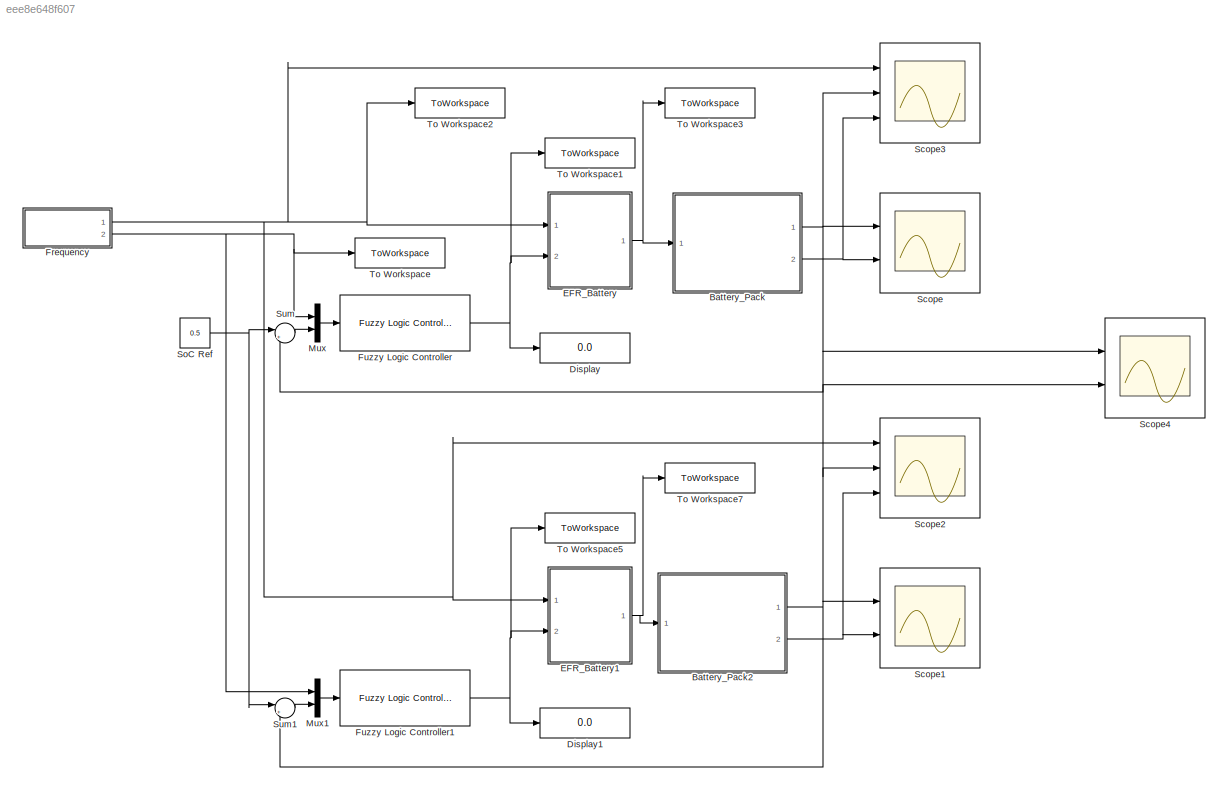
MODEL slx_eee8e648f607
KIND model
CONFIG AbsTol = auto
CONFIG EnableMultiTasking = off
CONFIG FixedStep = auto
CONFIG MaxStep = auto
CONFIG MinStep = auto
CONFIG RelTol = 1e-3
CONFIG SampleTimeConstraint = Unconstrained
CONFIG SolverName = ode23
CONFIG StartTime = 0.0
CONFIG StopTime = 3600*24
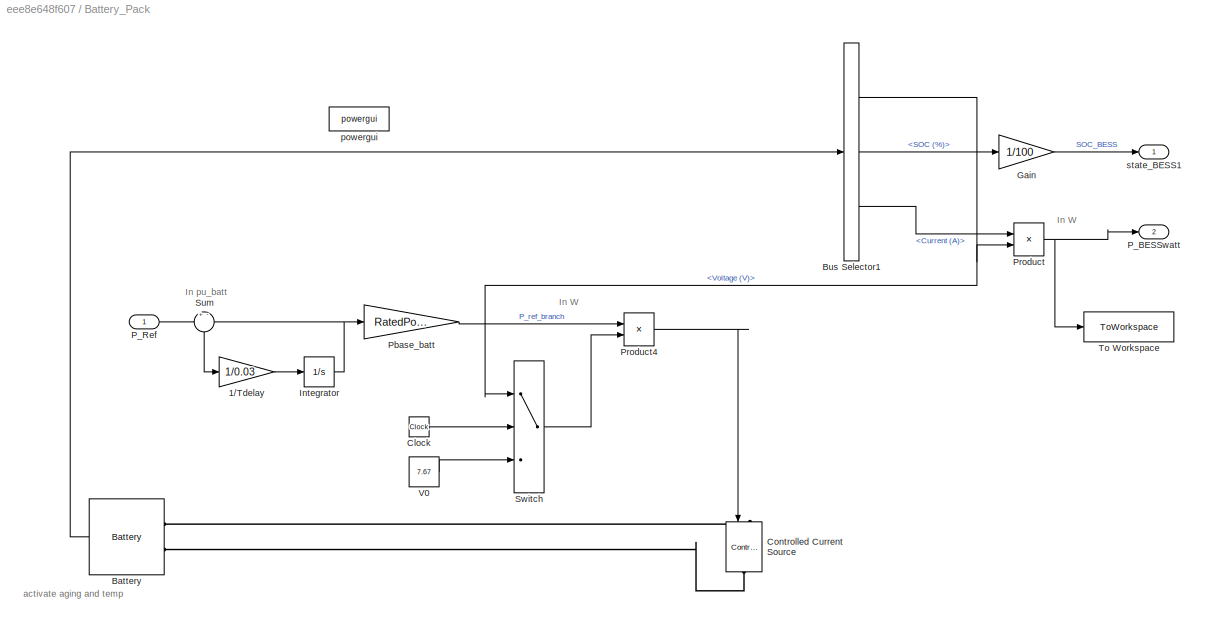
BLOCK [SubSystem] Battery_Pack
  Ports = [1, 2]
  RequestExecContextInheritance = off
BLOCK [Gain] Battery_Pack/1//Tdelay
  Gain = 1/0.03
BLOCK [Reference] Battery_Pack/Battery  REF=spsBatteryLib/Battery
  Ports = [0, 1, 0, 0, 0, 2]
  SourceBlock = spsBatteryLib/Battery
  SourceProductBaseCode = PS
  SourceType = Battery
BLOCK [BusSelector] Battery_Pack/Bus Selector1
  OutputSignals = Voltage (V),SOC (%),Current (A)
  Ports = [1, 3]
BLOCK [Clock] Battery_Pack/Clock
BLOCK [Reference] Battery_Pack/Controlled Current Source  REF=spsControlledCurrentSourceLib/Controlled Current Source
  NameLocation = left
  Ports = [1, 0, 0, 0, 0, 1, 1]
  SourceBlock = spsControlledCurrentSourceLib/Controlled Current Source
  SourceProductBaseCode = PS
  SourceType = Controlled Current Source
BLOCK [Gain] Battery_Pack/Gain
  Gain = 1/100
BLOCK [Integrator] Battery_Pack/Integrator
  Ports = [1, 1]
BLOCK [Outport] Battery_Pack/P_BESSwatt
  Port = 2
  VectorParamsAs1DForOutWhenUnconnected = off
BLOCK [Inport] Battery_Pack/P_Ref
BLOCK [Gain] Battery_Pack/Pbase_batt
  Gain = RatedPower
BLOCK [Product] Battery_Pack/Product
  Ports = [2, 1]
BLOCK [Product] Battery_Pack/Product4
  Inputs = */
  Ports = [2, 1]
BLOCK [Sum] Battery_Pack/Sum
  Inputs = +-
  NameLocation = left
  Ports = [2, 1]
BLOCK [Switch] Battery_Pack/Switch
  Criteria = u2 > Threshold
  InputSameDT = off
  SaturateOnIntegerOverflow = off
BLOCK [ToWorkspace] Battery_Pack/To Workspace
  FixptAsFi = on
  MaxDataPoints = inf
  Ports = [1]
  SampleTime = 1
  VariableName = PBESS1
BLOCK [Constant] Battery_Pack/V0
  Value = 7.67
BLOCK [Reference] Battery_Pack/powergui  REF=spspowerguiLib/powergui
  Ports = []
  SourceBlock = spspowerguiLib/powergui
  SourceProductBaseCode = PS
  SourceType = PSB option menu block
BLOCK [Outport] Battery_Pack/state_BESS1
  VectorParamsAs1DForOutWhenUnconnected = off
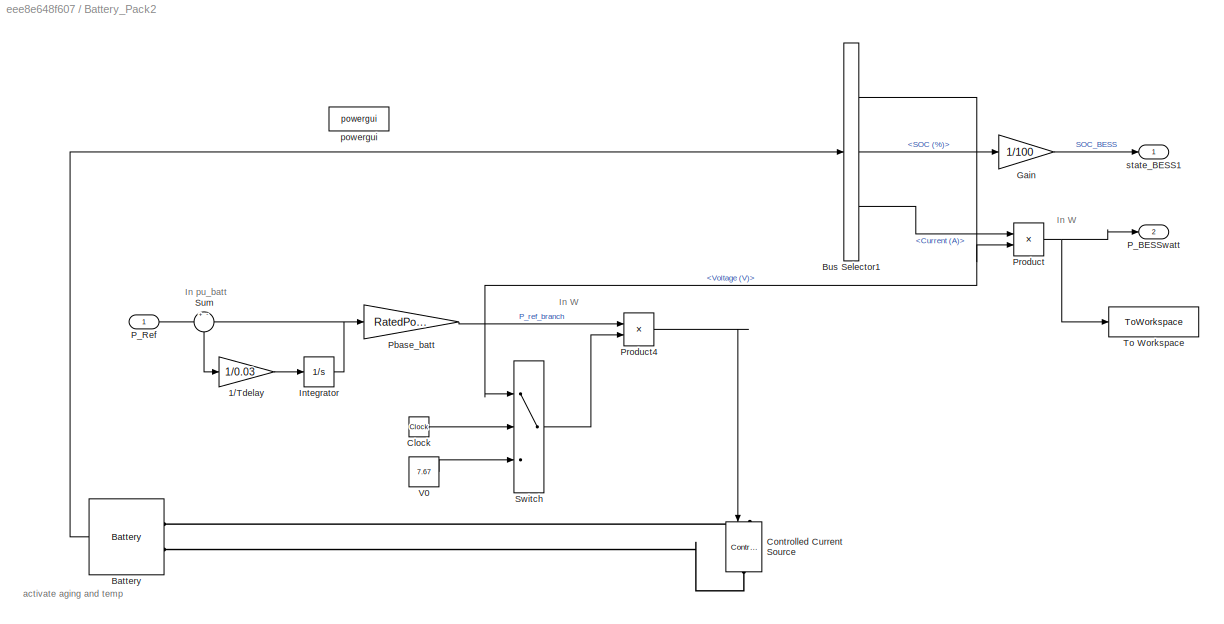
BLOCK [SubSystem] Battery_Pack2
  Ports = [1, 2]
  RequestExecContextInheritance = off
BLOCK [Gain] Battery_Pack2/1//Tdelay
  Gain = 1/0.03
BLOCK [Reference] Battery_Pack2/Battery  REF=spsBatteryLib/Battery
  Ports = [0, 1, 0, 0, 0, 2]
  SourceBlock = spsBatteryLib/Battery
  SourceProductBaseCode = PS
  SourceType = Battery
BLOCK [BusSelector] Battery_Pack2/Bus Selector1
  OutputSignals = Voltage (V),SOC (%),Current (A)
  Ports = [1, 3]
BLOCK [Clock] Battery_Pack2/Clock
BLOCK [Reference] Battery_Pack2/Controlled Current Source  REF=spsControlledCurrentSourceLib/Controlled Current Source
  NameLocation = left
  Ports = [1, 0, 0, 0, 0, 1, 1]
  SourceBlock = spsControlledCurrentSourceLib/Controlled Current Source
  SourceProductBaseCode = PS
  SourceType = Controlled Current Source
BLOCK [Gain] Battery_Pack2/Gain
  Gain = 1/100
BLOCK [Integrator] Battery_Pack2/Integrator
  Ports = [1, 1]
BLOCK [Outport] Battery_Pack2/P_BESSwatt
  Port = 2
  VectorParamsAs1DForOutWhenUnconnected = off
BLOCK [Inport] Battery_Pack2/P_Ref
BLOCK [Gain] Battery_Pack2/Pbase_batt
  Gain = RatedPower
BLOCK [Product] Battery_Pack2/Product
  Ports = [2, 1]
BLOCK [Product] Battery_Pack2/Product4
  Inputs = */
  Ports = [2, 1]
BLOCK [Sum] Battery_Pack2/Sum
  Inputs = +-
  NameLocation = left
  Ports = [2, 1]
BLOCK [Switch] Battery_Pack2/Switch
  Criteria = u2 > Threshold
  InputSameDT = off
  SaturateOnIntegerOverflow = off
BLOCK [ToWorkspace] Battery_Pack2/To Workspace
  FixptAsFi = on
  MaxDataPoints = inf
  Ports = [1]
  SampleTime = 1
  VariableName = PBESS2
BLOCK [Constant] Battery_Pack2/V0
  Value = 7.67
BLOCK [Reference] Battery_Pack2/powergui  REF=spspowerguiLib/powergui
  Ports = []
  SourceBlock = spspowerguiLib/powergui
  SourceProductBaseCode = PS
  SourceType = PSB option menu block
BLOCK [Outport] Battery_Pack2/state_BESS1
  VectorParamsAs1DForOutWhenUnconnected = off
BLOCK [Display] Display
  Decimation = 1
  Ports = [1]
BLOCK [Display] Display1
  Decimation = 1
  Ports = [1]
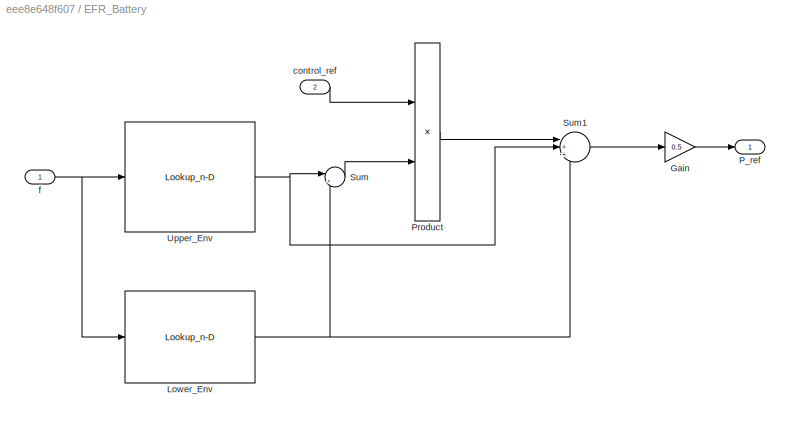
BLOCK [SubSystem] EFR_Battery
  Ports = [2, 1]
  RequestExecContextInheritance = off
BLOCK [Gain] EFR_Battery/Gain
  Gain = 0.5
BLOCK [Lookup_n-D] EFR_Battery/Lower_Env
  BreakpointsForDimension1 = f_serv_low
  ExtrapMethod = Clip
  InputPortMap = u0
  InternalRulePriority = Speed
  NumberOfTableDimensions = 1
  Ports = [1, 1]
  RndMeth = Simplest
  Table = P_serv_low
  UseLastTableValue = on
BLOCK [Outport] EFR_Battery/P_ref
  VectorParamsAs1DForOutWhenUnconnected = off
BLOCK [Product] EFR_Battery/Product
  Ports = [2, 1]
BLOCK [Sum] EFR_Battery/Sum
  Inputs = |+-
  Ports = [2, 1]
BLOCK [Sum] EFR_Battery/Sum1
  Inputs = |+++
  Ports = [3, 1]
BLOCK [Lookup_n-D] EFR_Battery/Upper_Env
  BreakpointsForDimension1 = f_serv_upp
  ExtrapMethod = Clip
  InputPortMap = u0
  InternalRulePriority = Speed
  NumberOfTableDimensions = 1
  Ports = [1, 1]
  RndMeth = Simplest
  Table = P_serv_upp
  UseLastTableValue = on
BLOCK [Inport] EFR_Battery/control_ref
  NameLocation = top
  Port = 2
  SampleTime = 10
BLOCK [Inport] EFR_Battery/f
  NameLocation = top
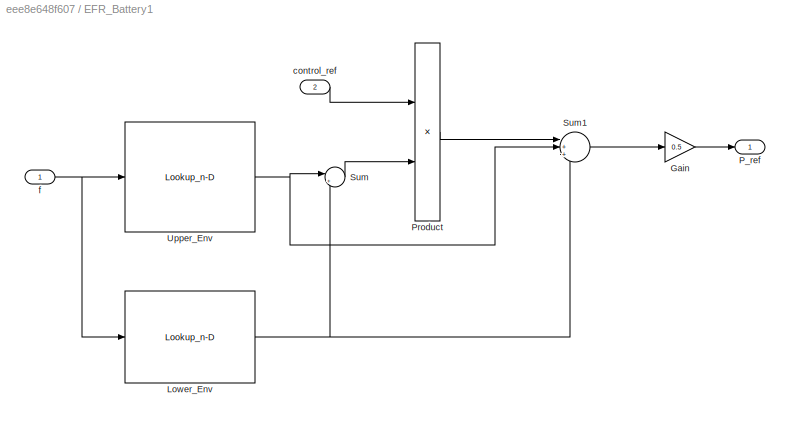
BLOCK [SubSystem] EFR_Battery1
  Ports = [2, 1]
  RequestExecContextInheritance = off
BLOCK [Gain] EFR_Battery1/Gain
  Gain = 0.5
BLOCK [Lookup_n-D] EFR_Battery1/Lower_Env
  BreakpointsForDimension1 = f_serv_low
  ExtrapMethod = Clip
  InputPortMap = u0
  InternalRulePriority = Speed
  NumberOfTableDimensions = 1
  Ports = [1, 1]
  RndMeth = Simplest
  Table = P_serv_low
  UseLastTableValue = on
BLOCK [Outport] EFR_Battery1/P_ref
  VectorParamsAs1DForOutWhenUnconnected = off
BLOCK [Product] EFR_Battery1/Product
  Ports = [2, 1]
BLOCK [Sum] EFR_Battery1/Sum
  Inputs = |+-
  Ports = [2, 1]
BLOCK [Sum] EFR_Battery1/Sum1
  Inputs = |+++
  Ports = [3, 1]
BLOCK [Lookup_n-D] EFR_Battery1/Upper_Env
  BreakpointsForDimension1 = f_serv_upp
  ExtrapMethod = Clip
  InputPortMap = u0
  InternalRulePriority = Speed
  NumberOfTableDimensions = 1
  Ports = [1, 1]
  RndMeth = Simplest
  Table = P_serv_upp
  UseLastTableValue = on
BLOCK [Inport] EFR_Battery1/control_ref
  NameLocation = top
  Port = 2
  SampleTime = 10
BLOCK [Inport] EFR_Battery1/f
  NameLocation = top
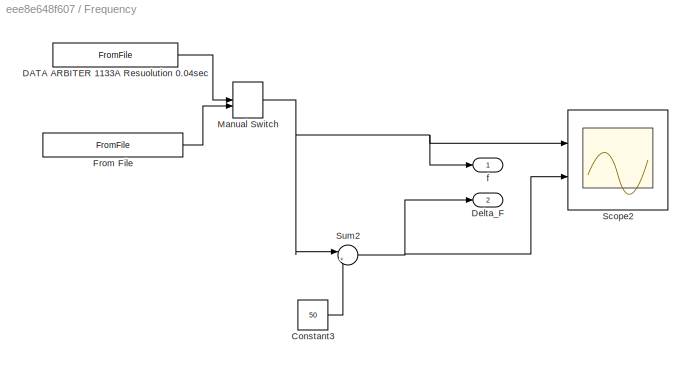
BLOCK [SubSystem] Frequency
  Ports = [0, 2]
  RequestExecContextInheritance = off
BLOCK [Constant] Frequency/Constant3
  Value = 50
BLOCK [FromFile] Frequency/DATA ARBITER 1133A Resuolution 0.04sec 
  FileName = f_DATA_1133Axxx.mat
BLOCK [Outport] Frequency/Delta_F
  Port = 2
BLOCK [FromFile] Frequency/From File
  ExtrapolationBeforeFirstDataPoint = Ground value
  FileName = f_data_2021_12v.mat
BLOCK [ManualSwitch] Frequency/Manual Switch
  CurrentSetting = 0
BLOCK [Scope] Frequency/Scope2
  Floating = off
  NumInputPorts = 2
  Ports = [2]
  ScopeSpecificationString = Simulink.scopes.TimeScopeBlockCfg('CurrentConfiguration', extmgr.ConfigurationSet(extmgr.Configuration('Core','General UI',true),extmgr.Configuration('Core','Source UI',true),extmgr.Configuration('Sources','WiredSimulink',true,'DataLoggingVariableName','ScopeData2'),extmgr.Configuration('Visuals','Time Domain',true,'SerializedDisplays',{struct('MinYLimReal','49.8701','MaxYLimReal','50.04082','YLab...<+2027ch>
BLOCK [Sum] Frequency/Sum2
  Inputs = |+-
  Ports = [2, 1]
BLOCK [Outport] Frequency/f
BLOCK [Reference] Fuzzy Logic Controller  REF=fuzblock/Fuzzy Logic   (lib defined in mdl_858b3b3e7478)
Controller
  Ports = [1, 1]
  SourceBlock = fuzblock/Fuzzy Logic \nController
  SourceProductBaseCode = FL
  SourceType = Fuzzy Inference System
BLOCK [Reference] Fuzzy Logic Controller1  REF=fuzblock/Fuzzy Logic   (lib defined in mdl_858b3b3e7478)
Controller
  Ports = [1, 1]
  SourceBlock = fuzblock/Fuzzy Logic \nController
  SourceProductBaseCode = FL
  SourceType = Fuzzy Inference System
BLOCK [Mux] Mux
  DisplayOption = bar
  Inputs = 2
  Ports = [2, 1]
BLOCK [Mux] Mux1
  DisplayOption = bar
  Inputs = 2
  Ports = [2, 1]
BLOCK [Scope] Scope
  Floating = off
  NumInputPorts = 2
  Ports = [2]
  ScopeSpecificationString = Simulink.scopes.TimeScopeBlockCfg('CurrentConfiguration', extmgr.ConfigurationSet(extmgr.Configuration('Core','General UI',true),extmgr.Configuration('Core','Source UI',true),extmgr.Configuration('Sources','WiredSimulink',true,'DataLoggingVariableName','ScopeData1'),extmgr.Configuration('Visuals','Time Domain',true,'SerializedDisplays',{struct('MinYLimReal','0.45755','MaxYLimReal','0.50472','YLabe...<+2140ch>
BLOCK [Scope] Scope1
  Floating = off
  NumInputPorts = 2
  Ports = [2]
  ScopeSpecificationString = Simulink.scopes.TimeScopeBlockCfg('CurrentConfiguration', extmgr.ConfigurationSet(extmgr.Configuration('Core','General UI',true),extmgr.Configuration('Core','Source UI',true),extmgr.Configuration('Sources','WiredSimulink',true,'DataLoggingVariableName','ScopeData1'),extmgr.Configuration('Visuals','Time Domain',true,'SerializedDisplays',{struct('MinYLimReal','0.44332','MaxYLimReal','0.5438','YLabel...<+2140ch>
BLOCK [Scope] Scope2
  Floating = off
  NumInputPorts = 3
  Ports = [3]
  ScopeSpecificationString = Simulink.scopes.TimeScopeBlockCfg('CurrentConfiguration', extmgr.ConfigurationSet(extmgr.Configuration('Core','General UI',true,'FigureColor',[1 1 1]),extmgr.Configuration('Core','Source UI',true),extmgr.Configuration('Sources','WiredSimulink',true,'DataLoggingVariableName','ScopeData2'),extmgr.Configuration('Visuals','Time Domain',true,'SerializedDisplays',{struct('MinYLimReal','49.69225','MaxYLi...<+3238ch>
BLOCK [Scope] Scope3
  Floating = off
  NumInputPorts = 3
  Ports = [3]
  ScopeSpecificationString = Simulink.scopes.TimeScopeBlockCfg('CurrentConfiguration', extmgr.ConfigurationSet(extmgr.Configuration('Core','General UI',true,'FigureColor',[1 1 1]),extmgr.Configuration('Core','Source UI',true),extmgr.Configuration('Sources','WiredSimulink',true,'DataLoggingVariableName','ScopeData2'),extmgr.Configuration('Visuals','Time Domain',true,'SerializedDisplays',{struct('MinYLimReal','49.85325','MaxYLi...<+3239ch>
BLOCK [Scope] Scope4
  Floating = off
  NumInputPorts = 2
  Ports = [2]
  ScopeSpecificationString = Simulink.scopes.TimeScopeBlockCfg('CurrentConfiguration', extmgr.ConfigurationSet(extmgr.Configuration('Core','General UI',true,'FigureColor',[1 1 1]),extmgr.Configuration('Core','Source UI',true),extmgr.Configuration('Sources','WiredSimulink',true,'DataLoggingVariableName','ScopeData3'),extmgr.Configuration('Visuals','Time Domain',true,'SerializedDisplays',{struct('MinYLimReal','0.45321','MaxYLim...<+2305ch>
BLOCK [Constant] SoC Ref
  Value = 0.5
BLOCK [Sum] Sum
  Inputs = |+-
  Ports = [2, 1]
BLOCK [Sum] Sum1
  Inputs = |+-
  Ports = [2, 1]
BLOCK [ToWorkspace] To Workspace
  FixptAsFi = on
  MaxDataPoints = inf
  Ports = [1]
  SampleTime = -1
  VariableName = deltaFreq
BLOCK [ToWorkspace] To Workspace1
  FixptAsFi = on
  MaxDataPoints = inf
  Ports = [1]
  SampleTime = -1
  VariableName = Control
BLOCK [ToWorkspace] To Workspace2
  FixptAsFi = on
  MaxDataPoints = inf
  Ports = [1]
  SampleTime = -1
  VariableName = Freq
BLOCK [ToWorkspace] To Workspace3
  FixptAsFi = on
  MaxDataPoints = inf
  Ports = [1]
  SampleTime = -1
  VariableName = RefBESS
BLOCK [ToWorkspace] To Workspace5
  FixptAsFi = on
  MaxDataPoints = inf
  Ports = [1]
  SampleTime = -1
  VariableName = ControlT2
BLOCK [ToWorkspace] To Workspace7
  FixptAsFi = on
  MaxDataPoints = inf
  Ports = [1]
  SampleTime = -1
  VariableName = RefBESST2
ANNOTATION Battery_Pack: In W
ANNOTATION Battery_Pack: In pu_batt
ANNOTATION Battery_Pack: activate aging and temp
ANNOTATION Battery_Pack2: In W
ANNOTATION Battery_Pack2: In pu_batt
ANNOTATION Battery_Pack2: activate aging and temp
LINE Battery_Pack/1//Tdelay:1 -> Battery_Pack/Integrator:1
LINE Battery_Pack/Battery:1 -> Battery_Pack/Bus Selector1:1
NET Battery_Pack/Bus Selector1:1 -> Battery_Pack/Product:2, Battery_Pack/Switch:1
LINE Battery_Pack/Bus Selector1:2 -> Battery_Pack/Gain:1
LINE Battery_Pack/Bus Selector1:3 -> Battery_Pack/Product:1
LINE Battery_Pack/Clock:1 -> Battery_Pack/Switch:2
LINE Battery_Pack/Gain:1 -> Battery_Pack/state_BESS1:1
NET Battery_Pack/Integrator:1 -> Battery_Pack/Pbase_batt:1, Battery_Pack/Sum:2
LINE Battery_Pack/P_Ref:1 -> Battery_Pack/Sum:1
LINE Battery_Pack/Pbase_batt:1 -> Battery_Pack/Product4:1
LINE Battery_Pack/Product4:1 -> Battery_Pack/Controlled Current Source:1
NET Battery_Pack/Product:1 -> Battery_Pack/P_BESSwatt:1, Battery_Pack/To Workspace:1
LINE Battery_Pack/Sum:1 -> Battery_Pack/1//Tdelay:1
LINE Battery_Pack/Switch:1 -> Battery_Pack/Product4:2
LINE Battery_Pack/V0:1 -> Battery_Pack/Switch:3
LINE Battery_Pack2/1//Tdelay:1 -> Battery_Pack2/Integrator:1
LINE Battery_Pack2/Battery:1 -> Battery_Pack2/Bus Selector1:1
NET Battery_Pack2/Bus Selector1:1 -> Battery_Pack2/Product:2, Battery_Pack2/Switch:1
LINE Battery_Pack2/Bus Selector1:2 -> Battery_Pack2/Gain:1
LINE Battery_Pack2/Bus Selector1:3 -> Battery_Pack2/Product:1
LINE Battery_Pack2/Clock:1 -> Battery_Pack2/Switch:2
LINE Battery_Pack2/Gain:1 -> Battery_Pack2/state_BESS1:1
NET Battery_Pack2/Integrator:1 -> Battery_Pack2/Pbase_batt:1, Battery_Pack2/Sum:2
LINE Battery_Pack2/P_Ref:1 -> Battery_Pack2/Sum:1
LINE Battery_Pack2/Pbase_batt:1 -> Battery_Pack2/Product4:1
LINE Battery_Pack2/Product4:1 -> Battery_Pack2/Controlled Current Source:1
NET Battery_Pack2/Product:1 -> Battery_Pack2/P_BESSwatt:1, Battery_Pack2/To Workspace:1
LINE Battery_Pack2/Sum:1 -> Battery_Pack2/1//Tdelay:1
LINE Battery_Pack2/Switch:1 -> Battery_Pack2/Product4:2
LINE Battery_Pack2/V0:1 -> Battery_Pack2/Switch:3
NET Battery_Pack2:1 -> Scope1:1, Scope2:2, Scope4:2, Sum1:2
NET Battery_Pack2:2 -> Scope1:2, Scope2:3
NET Battery_Pack:1 -> Scope3:2, Scope4:1, Scope:1, Sum:2
NET Battery_Pack:2 -> Scope3:3, Scope:2
LINE EFR_Battery/Gain:1 -> EFR_Battery/P_ref:1
NET EFR_Battery/Lower_Env:1 -> EFR_Battery/Sum1:3, EFR_Battery/Sum:2
LINE EFR_Battery/Product:1 -> EFR_Battery/Sum1:1
LINE EFR_Battery/Sum1:1 -> EFR_Battery/Gain:1
LINE EFR_Battery/Sum:1 -> EFR_Battery/Product:2
NET EFR_Battery/Upper_Env:1 -> EFR_Battery/Sum1:2, EFR_Battery/Sum:1
LINE EFR_Battery/control_ref:1 -> EFR_Battery/Product:1
NET EFR_Battery/f:1 -> EFR_Battery/Lower_Env:1, EFR_Battery/Upper_Env:1
LINE EFR_Battery1/Gain:1 -> EFR_Battery1/P_ref:1
NET EFR_Battery1/Lower_Env:1 -> EFR_Battery1/Sum1:3, EFR_Battery1/Sum:2
LINE EFR_Battery1/Product:1 -> EFR_Battery1/Sum1:1
LINE EFR_Battery1/Sum1:1 -> EFR_Battery1/Gain:1
LINE EFR_Battery1/Sum:1 -> EFR_Battery1/Product:2
NET EFR_Battery1/Upper_Env:1 -> EFR_Battery1/Sum1:2, EFR_Battery1/Sum:1
LINE EFR_Battery1/control_ref:1 -> EFR_Battery1/Product:1
NET EFR_Battery1/f:1 -> EFR_Battery1/Lower_Env:1, EFR_Battery1/Upper_Env:1
NET EFR_Battery1:1 -> Battery_Pack2:1, To Workspace7:1
NET EFR_Battery:1 -> Battery_Pack:1, To Workspace3:1
LINE Frequency/Constant3:1 -> Frequency/Sum2:2
LINE Frequency/DATA ARBITER 1133A Resuolution 0.04sec :1 -> Frequency/Manual Switch:1
LINE Frequency/From File:1 -> Frequency/Manual Switch:2
NET Frequency/Manual Switch:1 -> Frequency/Scope2:1, Frequency/Sum2:1, Frequency/f:1
NET Frequency/Sum2:1 -> Frequency/Delta_F:1, Frequency/Scope2:2
NET Frequency:1 -> EFR_Battery1:1, EFR_Battery:1, Scope2:1, Scope3:1, To Workspace2:1
NET Frequency:2 -> Mux1:1, Mux:1, To Workspace:1
NET Fuzzy Logic Controller1:1 -> Display1:1, EFR_Battery1:2, To Workspace5:1
NET Fuzzy Logic Controller:1 -> Display:1, EFR_Battery:2, To Workspace1:1
LINE Mux1:1 -> Fuzzy Logic Controller1:1
LINE Mux:1 -> Fuzzy Logic Controller:1
NET SoC Ref:1 -> Sum1:1, Sum:1
LINE Sum1:1 -> Mux1:2
LINE Sum:1 -> Mux:2
PLINE Battery_Pack/Battery:LConn1 -- Battery_Pack/Controlled Current Source:LConn1
PLINE Battery_Pack/Battery:LConn2 -- Battery_Pack/Controlled Current Source:RConn1
PLINE Battery_Pack2/Battery:LConn1 -- Battery_Pack2/Controlled Current Source:LConn1
PLINE Battery_Pack2/Battery:LConn2 -- Battery_Pack2/Controlled Current Source:RConn1
note: NET lines group one-source signal fan-out (src -> all destinations, sorted); 1:1 wires keep LINE
